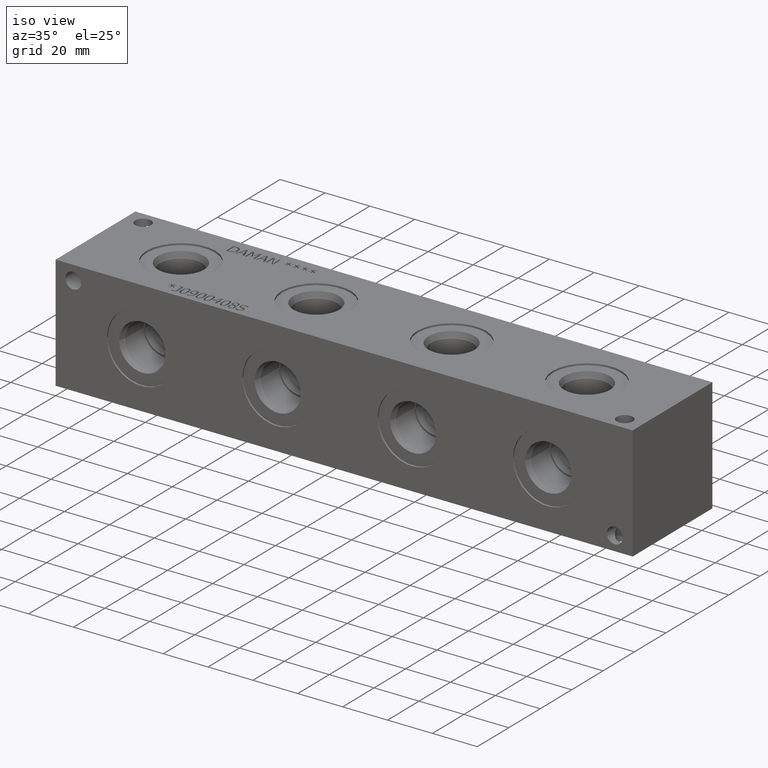
[diagram: clean part render]
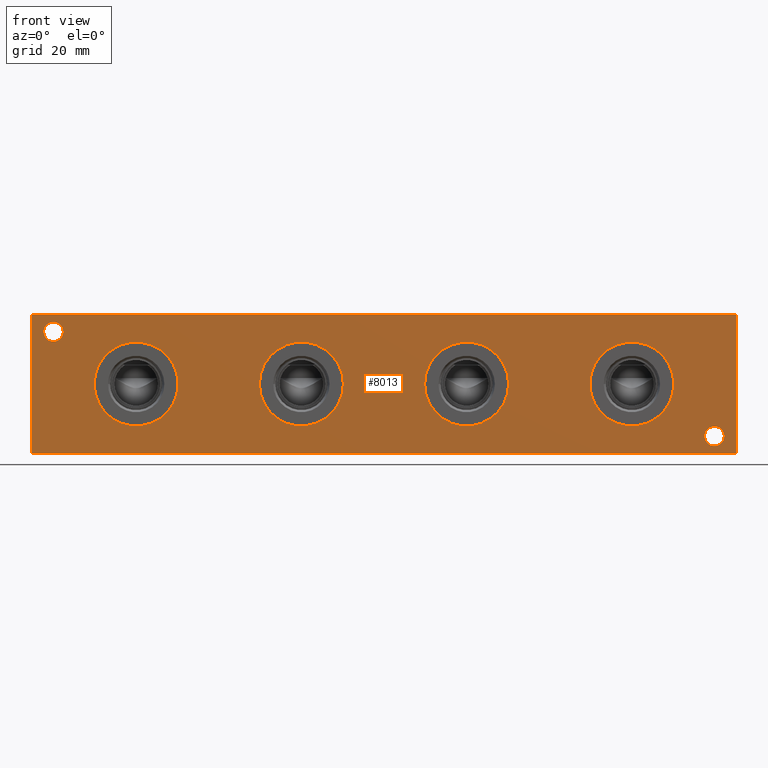
[diagram: tour spotlight — one face highlighted and labeled with its STEP entity id]
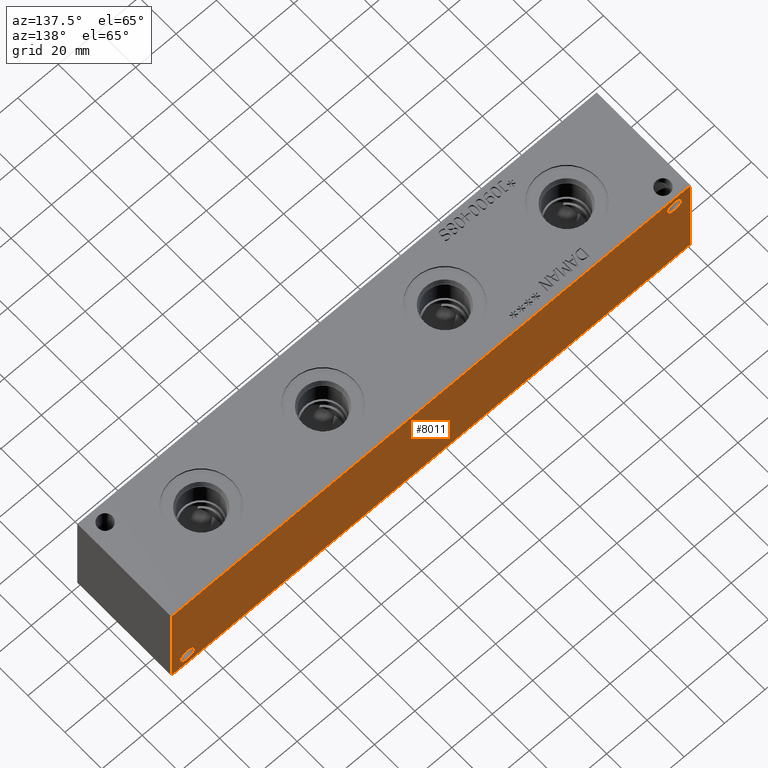
[diagram: tour spotlight — one face highlighted and labeled with its STEP entity id]
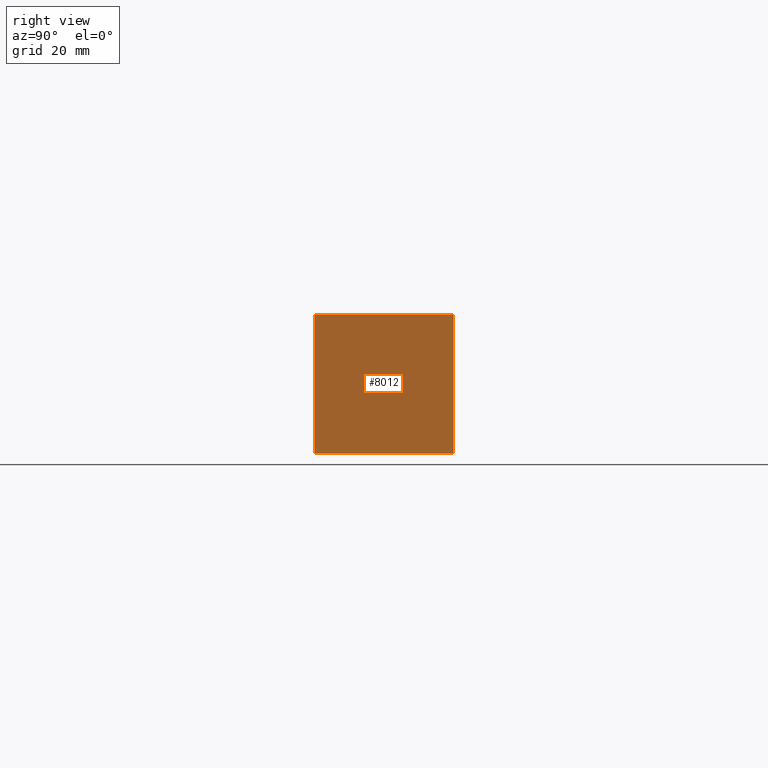
[diagram: tour spotlight — one face highlighted and labeled with its STEP entity id]
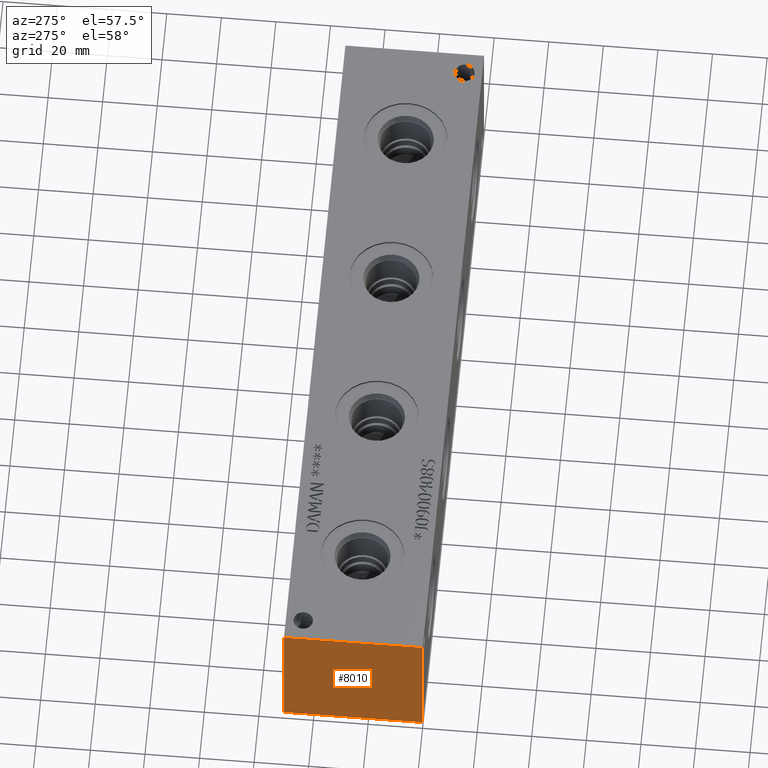
[diagram: tour spotlight — one face highlighted and labeled with its STEP entity id]
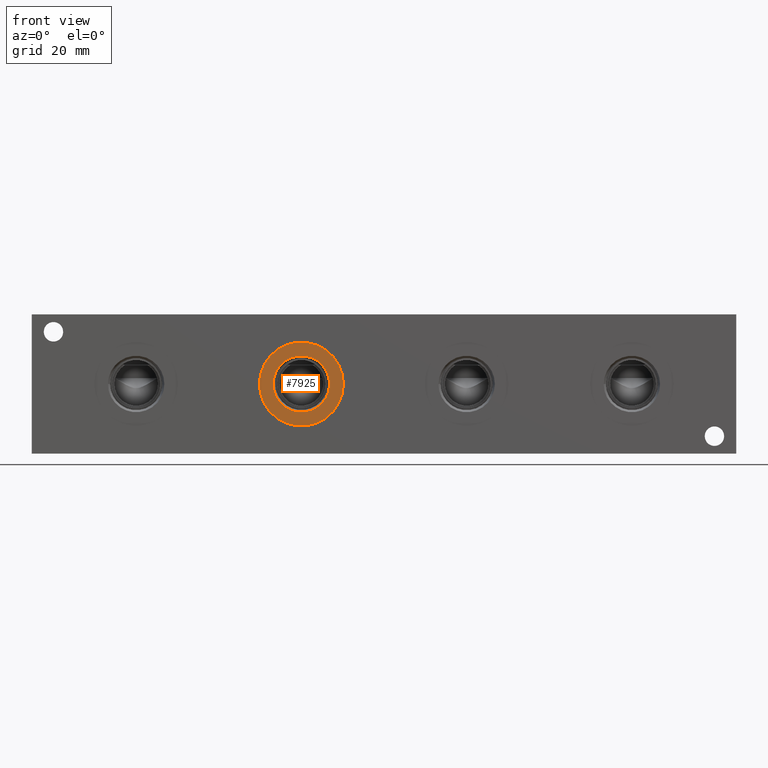
[diagram: tour spotlight — one face highlighted and labeled with its STEP entity id]
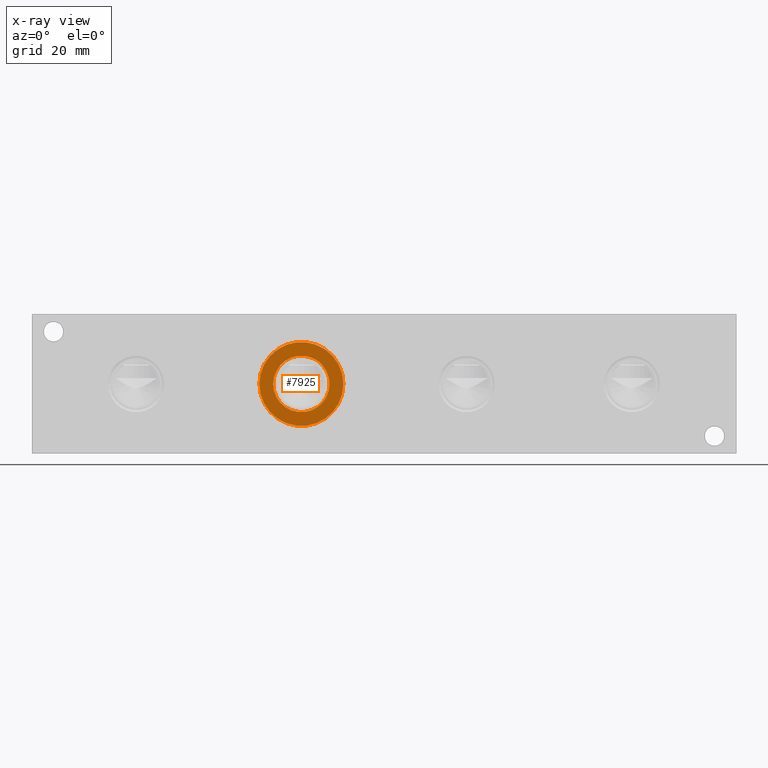
[diagram: x-ray of the same camera — body ghosted, this tour face saturated]
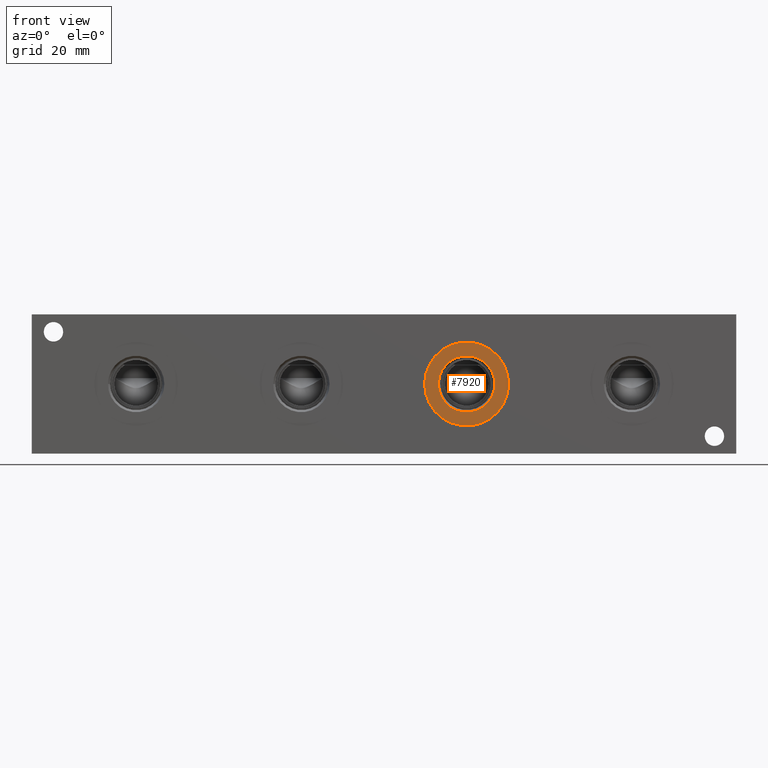
[diagram: tour spotlight — one face highlighted and labeled with its STEP entity id]
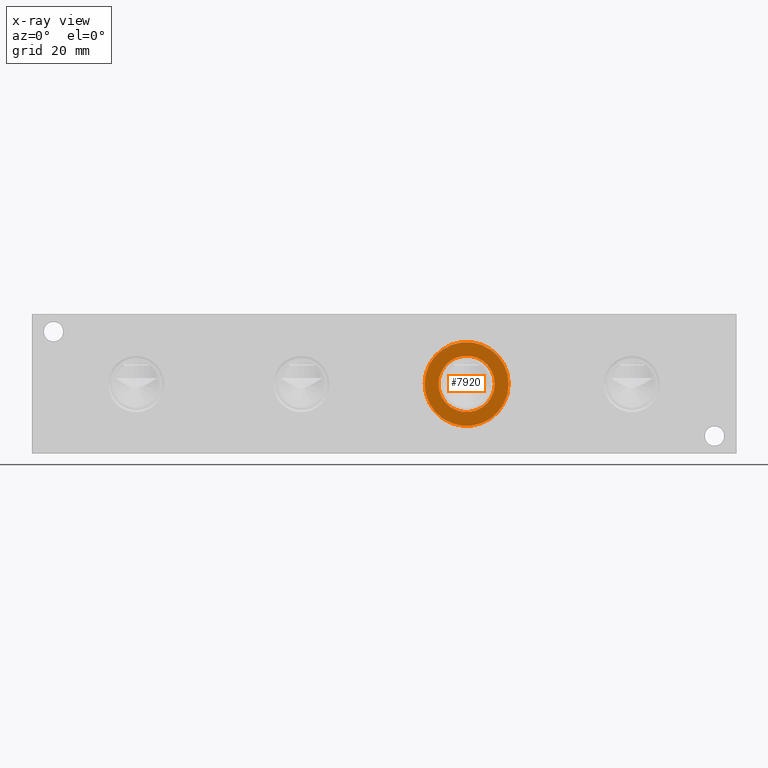
[diagram: x-ray of the same camera — body ghosted, this tour face saturated]
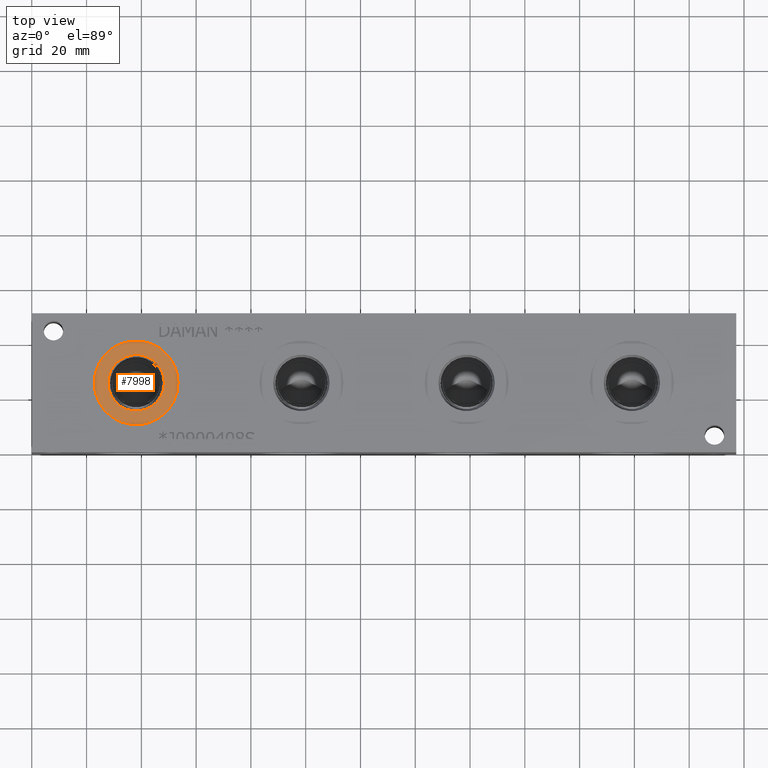
[diagram: tour spotlight — one face highlighted and labeled with its STEP entity id]
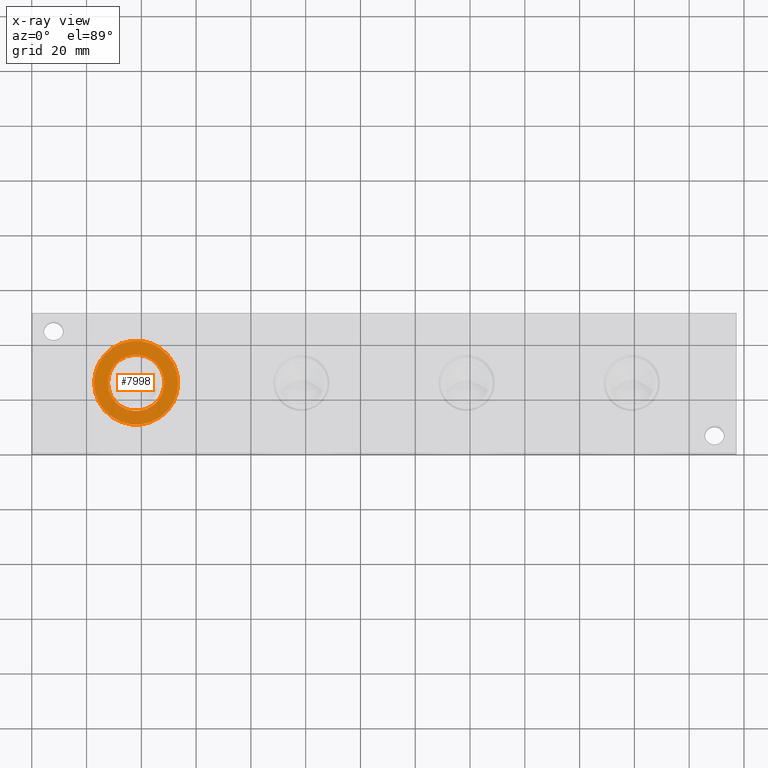
[diagram: x-ray of the same camera — body ghosted, this tour face saturated]
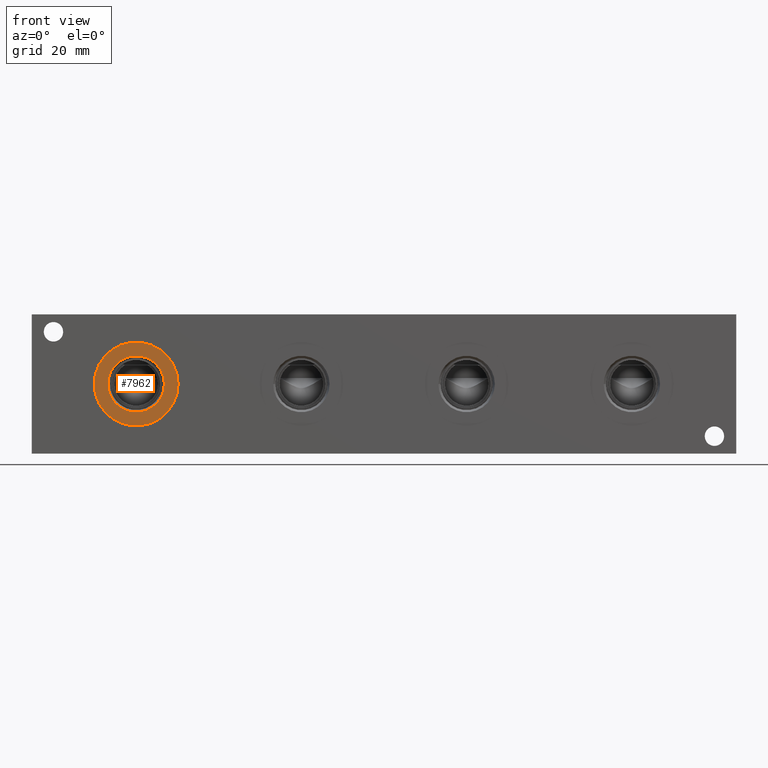
[diagram: tour spotlight — one face highlighted and labeled with its STEP entity id]
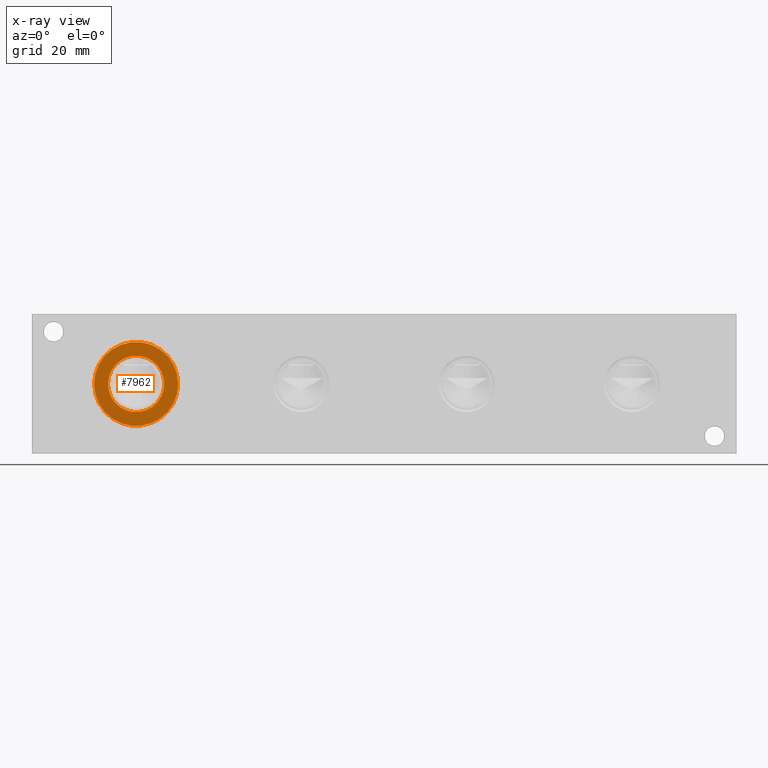
[diagram: x-ray of the same camera — body ghosted, this tour face saturated]
A machine part: a face-by-face anatomy tour. The part has 417 B-rep faces; the first image is the clean iso view, then the 8 largest visible faces are spotlighted one at a time (largest first), each with its STEP entity span.

Face 1 — front view, entity #8013. In plain terms, the highlighted planar face has unit normal (0, -1, 0).
Definition (entity closure, byte-faithful):
#126=CIRCLE('',#8243,15.3162);
#127=CIRCLE('',#8244,15.3162);
#137=CIRCLE('',#8259,15.3162);
#138=CIRCLE('',#8260,15.3162);
#148=CIRCLE('',#8275,15.3162);
#149=CIRCLE('',#8276,15.3162);
#204=CIRCLE('',#8380,15.3162);
#205=CIRCLE('',#8381,15.3162);
#262=CIRCLE('',#8479,3.5687);
#263=CIRCLE('',#8480,3.5687);
#265=CIRCLE('',#8488,3.5687);
#266=CIRCLE('',#8489,3.5687);
#324=FACE_BOUND('',#1440,.T.);
#325=FACE_BOUND('',#1441,.T.);
#326=FACE_BOUND('',#1442,.T.);
#327=FACE_BOUND('',#1443,.T.);
#328=FACE_BOUND('',#1444,.T.);
#329=FACE_BOUND('',#1445,.T.);
#551=PLANE('',#8505);
#968=FACE_OUTER_BOUND('',#1439,.T.);
#1439=EDGE_LOOP('',(#7154,#7155,#7156,#7157));
#1440=EDGE_LOOP('',(#7158,#7159));
#1441=EDGE_LOOP('',(#7160,#7161));
#1442=EDGE_LOOP('',(#7162,#7163));
#1443=EDGE_LOOP('',(#7164,#7165));
#1444=EDGE_LOOP('',(#7166,#7167));
#1445=EDGE_LOOP('',(#7168,#7169));
#1698=LINE('',#12488,#2391);
#2136=LINE('',#14061,#2829);
#2141=LINE('',#14070,#2834);
#2142=LINE('',#14072,#2835);
#2391=VECTOR('',#8874,10.);
#2829=VECTOR('',#10142,10.);
#2834=VECTOR('',#10151,10.);
#2835=VECTOR('',#10154,10.);
#3392=VERTEX_POINT('',#12486);
#3393=VERTEX_POINT('',#12487);
#3670=VERTEX_POINT('',#13428);
#3671=VERTEX_POINT('',#13429);
#3681=VERTEX_POINT('',#13459);
#3682=VERTEX_POINT('',#13460);
#3692=VERTEX_POINT('',#13490);
#3693=VERTEX_POINT('',#13491);
#3758=VERTEX_POINT('',#13837);
#3759=VERTEX_POINT('',#13838);
#3812=VERTEX_POINT('',#14014);
#3813=VERTEX_POINT('',#14015);
#3817=VERTEX_POINT('',#14030);
#3818=VERTEX_POINT('',#14031);
#3825=VERTEX_POINT('',#14059);
#3827=VERTEX_POINT('',#14068);
#4290=EDGE_CURVE('',#3392,#3393,#1698,.T.);
#4699=EDGE_CURVE('',#3670,#3671,#126,.T.);
#4700=EDGE_CURVE('',#3671,#3670,#127,.T.);
#4714=EDGE_CURVE('',#3681,#3682,#137,.T.);
#4715=EDGE_CURVE('',#3682,#3681,#138,.T.);
#4729=EDGE_CURVE('',#3692,#3693,#148,.T.);
#4730=EDGE_CURVE('',#3693,#3692,#149,.T.);
#4831=EDGE_CURVE('',#3758,#3759,#204,.T.);
#4832=EDGE_CURVE('',#3759,#3758,#205,.T.);
#4913=EDGE_CURVE('',#3812,#3813,#262,.T.);
#4914=EDGE_CURVE('',#3813,#3812,#263,.T.);
#4922=EDGE_CURVE('',#3817,#3818,#265,.T.);
#4923=EDGE_CURVE('',#3818,#3817,#266,.T.);
#4938=EDGE_CURVE('',#3825,#3392,#2136,.T.);
#4943=EDGE_CURVE('',#3827,#3393,#2141,.T.);
#4944=EDGE_CURVE('',#3825,#3827,#2142,.T.);
#7154=ORIENTED_EDGE('',*,*,#4944,.T.);
#7155=ORIENTED_EDGE('',*,*,#4943,.T.);
#7156=ORIENTED_EDGE('',*,*,#4290,.F.);
#7157=ORIENTED_EDGE('',*,*,#4938,.F.);
#7158=ORIENTED_EDGE('',*,*,#4699,.T.);
#7159=ORIENTED_EDGE('',*,*,#4700,.T.);
#7160=ORIENTED_EDGE('',*,*,#4714,.T.);
#7161=ORIENTED_EDGE('',*,*,#4715,.T.);
#7162=ORIENTED_EDGE('',*,*,#4729,.T.);
#7163=ORIENTED_EDGE('',*,*,#4730,.T.);
#7164=ORIENTED_EDGE('',*,*,#4831,.T.);
#7165=ORIENTED_EDGE('',*,*,#4832,.T.);
#7166=ORIENTED_EDGE('',*,*,#4913,.T.);
#7167=ORIENTED_EDGE('',*,*,#4914,.T.);
#7168=ORIENTED_EDGE('',*,*,#4922,.T.);
#7169=ORIENTED_EDGE('',*,*,#4923,.T.);
#8013=ADVANCED_FACE('',(#968,#324,#325,#326,#327,#328,#329),#551,.T.);
#8243=AXIS2_PLACEMENT_3D('',#13430,#9565,#9566);
#8244=AXIS2_PLACEMENT_3D('',#13431,#9567,#9568);
#8259=AXIS2_PLACEMENT_3D('',#13461,#9601,#9602);
#8260=AXIS2_PLACEMENT_3D('',#13462,#9603,#9604);
#8275=AXIS2_PLACEMENT_3D('',#13492,#9637,#9638);
#8276=AXIS2_PLACEMENT_3D('',#13493,#9639,#9640);
#8380=AXIS2_PLACEMENT_3D('',#13839,#9863,#9864);
#8381=AXIS2_PLACEMENT_3D('',#13840,#9865,#9866);
#8479=AXIS2_PLACEMENT_3D('',#14016,#10085,#10086);
#8480=AXIS2_PLACEMENT_3D('',#14017,#10087,#10088);
#8488=AXIS2_PLACEMENT_3D('',#14032,#10105,#10106);
#8489=AXIS2_PLACEMENT_3D('',#14033,#10107,#10108);
#8505=AXIS2_PLACEMENT_3D('',#14071,#10152,#10153);
#8874=DIRECTION('',(1.,0.,0.));
#9565=DIRECTION('center_axis',(0.,1.,0.));
#9566=DIRECTION('ref_axis',(1.,0.,0.));
#9567=DIRECTION('center_axis',(0.,1.,0.));
#9568=DIRECTION('ref_axis',(1.,0.,0.));
#9601=DIRECTION('center_axis',(0.,1.,0.));
#9602=DIRECTION('ref_axis',(1.,0.,0.));
#9603=DIRECTION('center_axis',(0.,1.,0.));
#9604=DIRECTION('ref_axis',(1.,0.,0.));
#9637=DIRECTION('center_axis',(0.,1.,0.));
#9638=DIRECTION('ref_axis',(1.,0.,0.));
#9639=DIRECTION('center_axis',(0.,1.,0.));
#9640=DIRECTION('ref_axis',(1.,0.,0.));
#9863=DIRECTION('center_axis',(0.,1.,0.));
#9864=DIRECTION('ref_axis',(1.,0.,0.));
#9865=DIRECTION('center_axis',(0.,1.,0.));
#9866=DIRECTION('ref_axis',(1.,0.,0.));
#10085=DIRECTION('center_axis',(0.,1.,0.));
#10086=DIRECTION('ref_axis',(1.,0.,0.));
#10087=DIRECTION('center_axis',(0.,1.,0.));
#10088=DIRECTION('ref_axis',(1.,0.,0.));
#10105=DIRECTION('center_axis',(0.,1.,0.));
#10106=DIRECTION('ref_axis',(1.,0.,0.));
#10107=DIRECTION('center_axis',(0.,1.,0.));
#10108=DIRECTION('ref_axis',(1.,0.,0.));
#10142=DIRECTION('',(0.,0.,1.));
#10151=DIRECTION('',(0.,0.,1.));
#10152=DIRECTION('center_axis',(0.,-1.,0.));
#10153=DIRECTION('ref_axis',(1.,0.,0.));
#10154=DIRECTION('',(1.,0.,0.));
#12486=CARTESIAN_POINT('',(0.,0.,50.8));
#12487=CARTESIAN_POINT('',(257.175,0.,50.8));
#12488=CARTESIAN_POINT('',(0.,0.,50.8));
#13428=CARTESIAN_POINT('',(234.3912,0.,25.4));
#13429=CARTESIAN_POINT('',(203.7588,0.,25.4));
#13430=CARTESIAN_POINT('Origin',(219.075,0.,25.4));
#13431=CARTESIAN_POINT('Origin',(219.075,0.,25.4));
#13459=CARTESIAN_POINT('',(174.0662,0.,25.4));
#13460=CARTESIAN_POINT('',(143.4338,0.,25.4));
#13461=CARTESIAN_POINT('Origin',(158.75,0.,25.4));
#13462=CARTESIAN_POINT('Origin',(158.75,0.,25.4));
#13490=CARTESIAN_POINT('',(113.7412,0.,25.4));
#13491=CARTESIAN_POINT('',(83.1088,0.,25.4));
#13492=CARTESIAN_POINT('Origin',(98.425,0.,25.4));
#13493=CARTESIAN_POINT('Origin',(98.425,0.,25.4));
#13837=CARTESIAN_POINT('',(53.4162,0.,25.4));
#13838=CARTESIAN_POINT('',(22.7838,0.,25.4));
#13839=CARTESIAN_POINT('Origin',(38.1,0.,25.4));
#13840=CARTESIAN_POINT('Origin',(38.1,0.,25.4));
#14014=CARTESIAN_POINT('',(11.4935,0.,44.45));
#14015=CARTESIAN_POINT('',(4.3561,0.,44.45));
#14016=CARTESIAN_POINT('Origin',(7.9248,0.,44.45));
#14017=CARTESIAN_POINT('Origin',(7.9248,0.,44.45));
#14030=CARTESIAN_POINT('',(252.7935,0.,6.35));
#14031=CARTESIAN_POINT('',(245.6561,0.,6.35));
#14032=CARTESIAN_POINT('Origin',(249.2248,0.,6.35));
#14033=CARTESIAN_POINT('Origin',(249.2248,0.,6.35));
#14059=CARTESIAN_POINT('',(0.,0.,0.));
#14061=CARTESIAN_POINT('',(0.,0.,0.));
#14068=CARTESIAN_POINT('',(257.175,0.,0.));
#14070=CARTESIAN_POINT('',(257.175,0.,0.));
#14071=CARTESIAN_POINT('Origin',(0.,0.,0.));
#14072=CARTESIAN_POINT('',(0.,0.,0.));

Face 2 — auxiliary view, entity #8011. In plain terms, the highlighted planar face has unit normal (0, 1, 0).
Definition (entity closure, byte-faithful):
#264=CIRCLE('',#8486,3.5687);
#267=CIRCLE('',#8495,3.5687);
#322=FACE_BOUND('',#1436,.T.);
#323=FACE_BOUND('',#1437,.T.);
#549=PLANE('',#8503);
#966=FACE_OUTER_BOUND('',#1435,.T.);
#1435=EDGE_LOOP('',(#7144,#7145,#7146,#7147));
#1436=EDGE_LOOP('',(#7148));
#1437=EDGE_LOOP('',(#7149));
#1700=LINE('',#12492,#2393);
#2137=LINE('',#14062,#2830);
#2138=LINE('',#14065,#2831);
#2139=LINE('',#14066,#2832);
#2393=VECTOR('',#8876,10.);
#2830=VECTOR('',#10143,10.);
#2831=VECTOR('',#10146,10.);
#2832=VECTOR('',#10147,10.);
#3394=VERTEX_POINT('',#12489);
#3395=VERTEX_POINT('',#12491);
#3816=VERTEX_POINT('',#14026);
#3821=VERTEX_POINT('',#14042);
#3824=VERTEX_POINT('',#14058);
#3826=VERTEX_POINT('',#14064);
#4292=EDGE_CURVE('',#3394,#3395,#1700,.T.);
#4921=EDGE_CURVE('',#3816,#3816,#264,.T.);
#4930=EDGE_CURVE('',#3821,#3821,#267,.T.);
#4939=EDGE_CURVE('',#3824,#3395,#2137,.T.);
#4940=EDGE_CURVE('',#3826,#3824,#2138,.T.);
#4941=EDGE_CURVE('',#3826,#3394,#2139,.T.);
#7144=ORIENTED_EDGE('',*,*,#4940,.T.);
#7145=ORIENTED_EDGE('',*,*,#4939,.T.);
#7146=ORIENTED_EDGE('',*,*,#4292,.F.);
#7147=ORIENTED_EDGE('',*,*,#4941,.F.);
#7148=ORIENTED_EDGE('',*,*,#4921,.T.);
#7149=ORIENTED_EDGE('',*,*,#4930,.T.);
#8011=ADVANCED_FACE('',(#966,#322,#323),#549,.T.);
#8486=AXIS2_PLACEMENT_3D('',#14028,#10101,#10102);
#8495=AXIS2_PLACEMENT_3D('',#14044,#10121,#10122);
#8503=AXIS2_PLACEMENT_3D('',#14063,#10144,#10145);
#8876=DIRECTION('',(-1.,0.,0.));
#10101=DIRECTION('center_axis',(0.,-1.,0.));
#10102=DIRECTION('ref_axis',(1.,0.,0.));
#10121=DIRECTION('center_axis',(0.,-1.,0.));
#10122=DIRECTION('ref_axis',(1.,0.,0.));
#10143=DIRECTION('',(0.,0.,1.));
#10144=DIRECTION('center_axis',(0.,1.,0.));
#10145=DIRECTION('ref_axis',(-1.,0.,0.));
#10146=DIRECTION('',(-1.,0.,0.));
#10147=DIRECTION('',(0.,0.,1.));
#12489=CARTESIAN_POINT('',(257.175,50.8,50.8));
#12491=CARTESIAN_POINT('',(0.,50.8,50.8));
#12492=CARTESIAN_POINT('',(257.175,50.8,50.8));
#14026=CARTESIAN_POINT('',(4.3561,50.8,44.45));
#14028=CARTESIAN_POINT('Origin',(7.9248,50.8,44.45));
#14042=CARTESIAN_POINT('',(245.6561,50.8,6.35));
#14044=CARTESIAN_POINT('Origin',(249.2248,50.8,6.35));
#14058=CARTESIAN_POINT('',(0.,50.8,0.));
#14062=CARTESIAN_POINT('',(0.,50.8,0.));
#14063=CARTESIAN_POINT('Origin',(257.175,50.8,0.));
#14064=CARTESIAN_POINT('',(257.175,50.8,0.));
#14065=CARTESIAN_POINT('',(257.175,50.8,0.));
#14066=CARTESIAN_POINT('',(257.175,50.8,0.));

Face 3 — right view, entity #8012. In plain terms, the highlighted planar face has unit normal (1, 0, 0).
Definition (entity closure, byte-faithful):
#550=PLANE('',#8504);
#967=FACE_OUTER_BOUND('',#1438,.T.);
#1438=EDGE_LOOP('',(#7150,#7151,#7152,#7153));
#1699=LINE('',#12490,#2392);
#2139=LINE('',#14066,#2832);
#2140=LINE('',#14069,#2833);
#2141=LINE('',#14070,#2834);
#2392=VECTOR('',#8875,10.);
#2832=VECTOR('',#10147,10.);
#2833=VECTOR('',#10150,10.);
#2834=VECTOR('',#10151,10.);
#3393=VERTEX_POINT('',#12487);
#3394=VERTEX_POINT('',#12489);
#3826=VERTEX_POINT('',#14064);
#3827=VERTEX_POINT('',#14068);
#4291=EDGE_CURVE('',#3393,#3394,#1699,.T.);
#4941=EDGE_CURVE('',#3826,#3394,#2139,.T.);
#4942=EDGE_CURVE('',#3827,#3826,#2140,.T.);
#4943=EDGE_CURVE('',#3827,#3393,#2141,.T.);
#7150=ORIENTED_EDGE('',*,*,#4942,.T.);
#7151=ORIENTED_EDGE('',*,*,#4941,.T.);
#7152=ORIENTED_EDGE('',*,*,#4291,.F.);
#7153=ORIENTED_EDGE('',*,*,#4943,.F.);
#8012=ADVANCED_FACE('',(#967),#550,.T.);
#8504=AXIS2_PLACEMENT_3D('',#14067,#10148,#10149);
#8875=DIRECTION('',(0.,1.,0.));
#10147=DIRECTION('',(0.,0.,1.));
#10148=DIRECTION('center_axis',(1.,0.,0.));
#10149=DIRECTION('ref_axis',(0.,1.,0.));
#10150=DIRECTION('',(0.,1.,0.));
#10151=DIRECTION('',(0.,0.,1.));
#12487=CARTESIAN_POINT('',(257.175,0.,50.8));
#12489=CARTESIAN_POINT('',(257.175,50.8,50.8));
#12490=CARTESIAN_POINT('',(257.175,0.,50.8));
#14064=CARTESIAN_POINT('',(257.175,50.8,0.));
#14066=CARTESIAN_POINT('',(257.175,50.8,0.));
#14067=CARTESIAN_POINT('Origin',(257.175,0.,0.));
#14068=CARTESIAN_POINT('',(257.175,0.,0.));
#14069=CARTESIAN_POINT('',(257.175,0.,0.));
#14070=CARTESIAN_POINT('',(257.175,0.,0.));

Face 4 — auxiliary view, entity #8010. In plain terms, the highlighted planar face has unit normal (-1, 0, 0).
Definition (entity closure, byte-faithful):
#548=PLANE('',#8502);
#965=FACE_OUTER_BOUND('',#1434,.T.);
#1434=EDGE_LOOP('',(#7140,#7141,#7142,#7143));
#1701=LINE('',#12493,#2394);
#2135=LINE('',#14060,#2828);
#2136=LINE('',#14061,#2829);
#2137=LINE('',#14062,#2830);
#2394=VECTOR('',#8877,10.);
#2828=VECTOR('',#10141,10.);
#2829=VECTOR('',#10142,10.);
#2830=VECTOR('',#10143,10.);
#3392=VERTEX_POINT('',#12486);
#3395=VERTEX_POINT('',#12491);
#3824=VERTEX_POINT('',#14058);
#3825=VERTEX_POINT('',#14059);
#4293=EDGE_CURVE('',#3395,#3392,#1701,.T.);
#4937=EDGE_CURVE('',#3824,#3825,#2135,.T.);
#4938=EDGE_CURVE('',#3825,#3392,#2136,.T.);
#4939=EDGE_CURVE('',#3824,#3395,#2137,.T.);
#7140=ORIENTED_EDGE('',*,*,#4937,.T.);
#7141=ORIENTED_EDGE('',*,*,#4938,.T.);
#7142=ORIENTED_EDGE('',*,*,#4293,.F.);
#7143=ORIENTED_EDGE('',*,*,#4939,.F.);
#8010=ADVANCED_FACE('',(#965),#548,.T.);
#8502=AXIS2_PLACEMENT_3D('',#14057,#10139,#10140);
#8877=DIRECTION('',(0.,-1.,0.));
#10139=DIRECTION('center_axis',(-1.,0.,0.));
#10140=DIRECTION('ref_axis',(0.,-1.,0.));
#10141=DIRECTION('',(0.,-1.,0.));
#10142=DIRECTION('',(0.,0.,1.));
#10143=DIRECTION('',(0.,0.,1.));
#12486=CARTESIAN_POINT('',(0.,0.,50.8));
#12491=CARTESIAN_POINT('',(0.,50.8,50.8));
#12493=CARTESIAN_POINT('',(0.,50.8,50.8));
#14057=CARTESIAN_POINT('Origin',(0.,50.8,0.));
#14058=CARTESIAN_POINT('',(0.,50.8,0.));
#14059=CARTESIAN_POINT('',(0.,0.,0.));
#14060=CARTESIAN_POINT('',(0.,50.8,0.));
#14061=CARTESIAN_POINT('',(0.,0.,0.));
#14062=CARTESIAN_POINT('',(0.,50.8,0.));

Face 5 — front view, entity #7925. An x-ray twin of the same camera follows (body ghosted, this face saturated) — the face is partly hidden behind the body. In plain terms, the highlighted planar face has unit normal (0, 1, 0).
Definition (entity closure, byte-faithful):
#150=CIRCLE('',#8277,15.3162);
#151=CIRCLE('',#8278,15.3162);
#152=CIRCLE('',#8280,10.2997);
#153=CIRCLE('',#8281,10.2997);
#308=FACE_BOUND('',#1336,.T.);
#534=PLANE('',#8279);
#880=FACE_OUTER_BOUND('',#1335,.T.);
#1335=EDGE_LOOP('',(#6728,#6729));
#1336=EDGE_LOOP('',(#6730,#6731));
#3694=VERTEX_POINT('',#13494);
#3695=VERTEX_POINT('',#13496);
#3696=VERTEX_POINT('',#13500);
#3697=VERTEX_POINT('',#13501);
#4732=EDGE_CURVE('',#3694,#3695,#150,.T.);
#4733=EDGE_CURVE('',#3695,#3694,#151,.T.);
#4734=EDGE_CURVE('',#3696,#3697,#152,.T.);
#4735=EDGE_CURVE('',#3697,#3696,#153,.T.);
#6728=ORIENTED_EDGE('',*,*,#4733,.F.);
#6729=ORIENTED_EDGE('',*,*,#4732,.F.);
#6730=ORIENTED_EDGE('',*,*,#4734,.T.);
#6731=ORIENTED_EDGE('',*,*,#4735,.T.);
#7925=ADVANCED_FACE('',(#880,#308),#534,.F.);
#8277=AXIS2_PLACEMENT_3D('',#13497,#9642,#9643);
#8278=AXIS2_PLACEMENT_3D('',#13498,#9644,#9645);
#8279=AXIS2_PLACEMENT_3D('',#13499,#9646,#9647);
#8280=AXIS2_PLACEMENT_3D('',#13502,#9648,#9649);
#8281=AXIS2_PLACEMENT_3D('',#13503,#9650,#9651);
#9642=DIRECTION('center_axis',(0.,1.,0.));
#9643=DIRECTION('ref_axis',(1.,0.,0.));
#9644=DIRECTION('center_axis',(0.,1.,0.));
#9645=DIRECTION('ref_axis',(1.,0.,0.));
#9646=DIRECTION('center_axis',(0.,1.,0.));
#9647=DIRECTION('ref_axis',(0.,0.,1.));
#9648=DIRECTION('center_axis',(0.,1.,0.));
#9649=DIRECTION('ref_axis',(1.,0.,0.));
#9650=DIRECTION('center_axis',(0.,1.,0.));
#9651=DIRECTION('ref_axis',(1.,0.,0.));
#13494=CARTESIAN_POINT('',(83.1088,0.7874,25.4));
#13496=CARTESIAN_POINT('',(113.7412,0.7874,25.4));
#13497=CARTESIAN_POINT('Origin',(98.425,0.7874,25.4));
#13498=CARTESIAN_POINT('Origin',(98.425,0.7874,25.4));
#13499=CARTESIAN_POINT('Origin',(108.7247,0.7874,25.4));
#13500=CARTESIAN_POINT('',(108.7247,0.7874,25.4));
#13501=CARTESIAN_POINT('',(88.1253,0.787399999999997,25.4));
#13502=CARTESIAN_POINT('Origin',(98.425,0.7874,25.4));
#13503=CARTESIAN_POINT('Origin',(98.425,0.7874,25.4));

Face 6 — front view, entity #7920. An x-ray twin of the same camera follows (body ghosted, this face saturated) — the face is partly hidden behind the body. In plain terms, the highlighted planar face has unit normal (0, 1, 0).
Definition (entity closure, byte-faithful):
#139=CIRCLE('',#8261,15.3162);
#140=CIRCLE('',#8262,15.3162);
#141=CIRCLE('',#8264,10.2997);
#142=CIRCLE('',#8265,10.2997);
#307=FACE_BOUND('',#1330,.T.);
#533=PLANE('',#8263);
#875=FACE_OUTER_BOUND('',#1329,.T.);
#1329=EDGE_LOOP('',(#6701,#6702));
#1330=EDGE_LOOP('',(#6703,#6704));
#3683=VERTEX_POINT('',#13463);
#3684=VERTEX_POINT('',#13465);
#3685=VERTEX_POINT('',#13469);
#3686=VERTEX_POINT('',#13470);
#4717=EDGE_CURVE('',#3683,#3684,#139,.T.);
#4718=EDGE_CURVE('',#3684,#3683,#140,.T.);
#4719=EDGE_CURVE('',#3685,#3686,#141,.T.);
#4720=EDGE_CURVE('',#3686,#3685,#142,.T.);
#6701=ORIENTED_EDGE('',*,*,#4718,.F.);
#6702=ORIENTED_EDGE('',*,*,#4717,.F.);
#6703=ORIENTED_EDGE('',*,*,#4719,.T.);
#6704=ORIENTED_EDGE('',*,*,#4720,.T.);
#7920=ADVANCED_FACE('',(#875,#307),#533,.F.);
#8261=AXIS2_PLACEMENT_3D('',#13466,#9606,#9607);
#8262=AXIS2_PLACEMENT_3D('',#13467,#9608,#9609);
#8263=AXIS2_PLACEMENT_3D('',#13468,#9610,#9611);
#8264=AXIS2_PLACEMENT_3D('',#13471,#9612,#9613);
#8265=AXIS2_PLACEMENT_3D('',#13472,#9614,#9615);
#9606=DIRECTION('center_axis',(0.,1.,0.));
#9607=DIRECTION('ref_axis',(1.,0.,0.));
#9608=DIRECTION('center_axis',(0.,1.,0.));
#9609=DIRECTION('ref_axis',(1.,0.,0.));
#9610=DIRECTION('center_axis',(0.,1.,0.));
#9611=DIRECTION('ref_axis',(0.,0.,1.));
#9612=DIRECTION('center_axis',(0.,1.,0.));
#9613=DIRECTION('ref_axis',(1.,0.,0.));
#9614=DIRECTION('center_axis',(0.,1.,0.));
#9615=DIRECTION('ref_axis',(1.,0.,0.));
#13463=CARTESIAN_POINT('',(143.4338,0.7874,25.4));
#13465=CARTESIAN_POINT('',(174.0662,0.7874,25.4));
#13466=CARTESIAN_POINT('Origin',(158.75,0.7874,25.4));
#13467=CARTESIAN_POINT('Origin',(158.75,0.7874,25.4));
#13468=CARTESIAN_POINT('Origin',(169.0497,0.7874,25.4));
#13469=CARTESIAN_POINT('',(169.0497,0.7874,25.4));
#13470=CARTESIAN_POINT('',(148.4503,0.787399999999999,25.4));
#13471=CARTESIAN_POINT('Origin',(158.75,0.7874,25.4));
#13472=CARTESIAN_POINT('Origin',(158.75,0.7874,25.4));

Face 7 — top view, entity #7998. An x-ray twin of the same camera follows (body ghosted, this face saturated) — the face is partly hidden behind the body. In plain terms, the highlighted planar face has unit normal (0, 0, -1).
Definition (entity closure, byte-faithful):
#254=CIRCLE('',#8466,15.3162);
#255=CIRCLE('',#8467,15.3162);
#256=CIRCLE('',#8469,10.2997);
#257=CIRCLE('',#8470,10.2997);
#321=FACE_BOUND('',#1422,.T.);
#547=PLANE('',#8468);
#953=FACE_OUTER_BOUND('',#1421,.T.);
#1421=EDGE_LOOP('',(#7075,#7076));
#1422=EDGE_LOOP('',(#7077,#7078));
#3804=VERTEX_POINT('',#13989);
#3805=VERTEX_POINT('',#13991);
#3806=VERTEX_POINT('',#13995);
#3807=VERTEX_POINT('',#13996);
#4902=EDGE_CURVE('',#3804,#3805,#254,.T.);
#4903=EDGE_CURVE('',#3805,#3804,#255,.T.);
#4904=EDGE_CURVE('',#3806,#3807,#256,.T.);
#4905=EDGE_CURVE('',#3807,#3806,#257,.T.);
#7075=ORIENTED_EDGE('',*,*,#4903,.F.);
#7076=ORIENTED_EDGE('',*,*,#4902,.F.);
#7077=ORIENTED_EDGE('',*,*,#4904,.T.);
#7078=ORIENTED_EDGE('',*,*,#4905,.T.);
#7998=ADVANCED_FACE('',(#953,#321),#547,.F.);
#8466=AXIS2_PLACEMENT_3D('',#13992,#10056,#10057);
#8467=AXIS2_PLACEMENT_3D('',#13993,#10058,#10059);
#8468=AXIS2_PLACEMENT_3D('',#13994,#10060,#10061);
#8469=AXIS2_PLACEMENT_3D('',#13997,#10062,#10063);
#8470=AXIS2_PLACEMENT_3D('',#13998,#10064,#10065);
#10056=DIRECTION('center_axis',(0.,0.,-1.));
#10057=DIRECTION('ref_axis',(1.,0.,0.));
#10058=DIRECTION('center_axis',(0.,0.,-1.));
#10059=DIRECTION('ref_axis',(1.,0.,0.));
#10060=DIRECTION('center_axis',(0.,0.,-1.));
#10061=DIRECTION('ref_axis',(-1.,0.,0.));
#10062=DIRECTION('center_axis',(0.,0.,-1.));
#10063=DIRECTION('ref_axis',(1.,0.,0.));
#10064=DIRECTION('center_axis',(0.,0.,-1.));
#10065=DIRECTION('ref_axis',(1.,0.,0.));
#13989=CARTESIAN_POINT('',(22.7838,25.4,50.0126));
#13991=CARTESIAN_POINT('',(53.4162,25.4,50.0126));
#13992=CARTESIAN_POINT('Origin',(38.1,25.4,50.0126));
#13993=CARTESIAN_POINT('Origin',(38.1,25.4,50.0126));
#13994=CARTESIAN_POINT('Origin',(48.3997,25.4,50.0126));
#13995=CARTESIAN_POINT('',(48.3997,25.4,50.0126));
#13996=CARTESIAN_POINT('',(27.8003,25.4,50.0126));
#13997=CARTESIAN_POINT('Origin',(38.1,25.4,50.0126));
#13998=CARTESIAN_POINT('Origin',(38.1,25.4,50.0126));

Face 8 — front view, entity #7962. An x-ray twin of the same camera follows (body ghosted, this face saturated) — the face is partly hidden behind the body. In plain terms, the highlighted planar face has unit normal (0, 1, 0).
Definition (entity closure, byte-faithful):
#206=CIRCLE('',#8382,15.3162);
#207=CIRCLE('',#8383,15.3162);
#208=CIRCLE('',#8385,10.2997);
#209=CIRCLE('',#8386,10.2997);
#313=FACE_BOUND('',#1378,.T.);
#539=PLANE('',#8384);
#917=FACE_OUTER_BOUND('',#1377,.T.);
#1377=EDGE_LOOP('',(#6895,#6896));
#1378=EDGE_LOOP('',(#6897,#6898));
#3760=VERTEX_POINT('',#13841);
#3761=VERTEX_POINT('',#13843);
#3762=VERTEX_POINT('',#13847);
#3763=VERTEX_POINT('',#13848);
#4834=EDGE_CURVE('',#3760,#3761,#206,.T.);
#4835=EDGE_CURVE('',#3761,#3760,#207,.T.);
#4836=EDGE_CURVE('',#3762,#3763,#208,.T.);
#4837=EDGE_CURVE('',#3763,#3762,#209,.T.);
#6895=ORIENTED_EDGE('',*,*,#4835,.F.);
#6896=ORIENTED_EDGE('',*,*,#4834,.F.);
#6897=ORIENTED_EDGE('',*,*,#4836,.T.);
#6898=ORIENTED_EDGE('',*,*,#4837,.T.);
#7962=ADVANCED_FACE('',(#917,#313),#539,.F.);
#8382=AXIS2_PLACEMENT_3D('',#13844,#9868,#9869);
#8383=AXIS2_PLACEMENT_3D('',#13845,#9870,#9871);
#8384=AXIS2_PLACEMENT_3D('',#13846,#9872,#9873);
#8385=AXIS2_PLACEMENT_3D('',#13849,#9874,#9875);
#8386=AXIS2_PLACEMENT_3D('',#13850,#9876,#9877);
#9868=DIRECTION('center_axis',(0.,1.,0.));
#9869=DIRECTION('ref_axis',(1.,0.,0.));
#9870=DIRECTION('center_axis',(0.,1.,0.));
#9871=DIRECTION('ref_axis',(1.,0.,0.));
#9872=DIRECTION('center_axis',(0.,1.,0.));
#9873=DIRECTION('ref_axis',(0.,0.,1.));
#9874=DIRECTION('center_axis',(0.,1.,0.));
#9875=DIRECTION('ref_axis',(1.,0.,0.));
#9876=DIRECTION('center_axis',(0.,1.,0.));
#9877=DIRECTION('ref_axis',(1.,0.,0.));
#13841=CARTESIAN_POINT('',(22.7838,0.7874,25.4));
#13843=CARTESIAN_POINT('',(53.4162,0.7874,25.4));
#13844=CARTESIAN_POINT('Origin',(38.1,0.7874,25.4));
#13845=CARTESIAN_POINT('Origin',(38.1,0.7874,25.4));
#13846=CARTESIAN_POINT('Origin',(48.3997,0.7874,25.4));
#13847=CARTESIAN_POINT('',(48.3997,0.7874,25.4));
#13848=CARTESIAN_POINT('',(27.8003,0.787400000000001,25.4));
#13849=CARTESIAN_POINT('Origin',(38.1,0.7874,25.4));
#13850=CARTESIAN_POINT('Origin',(38.1,0.7874,25.4));